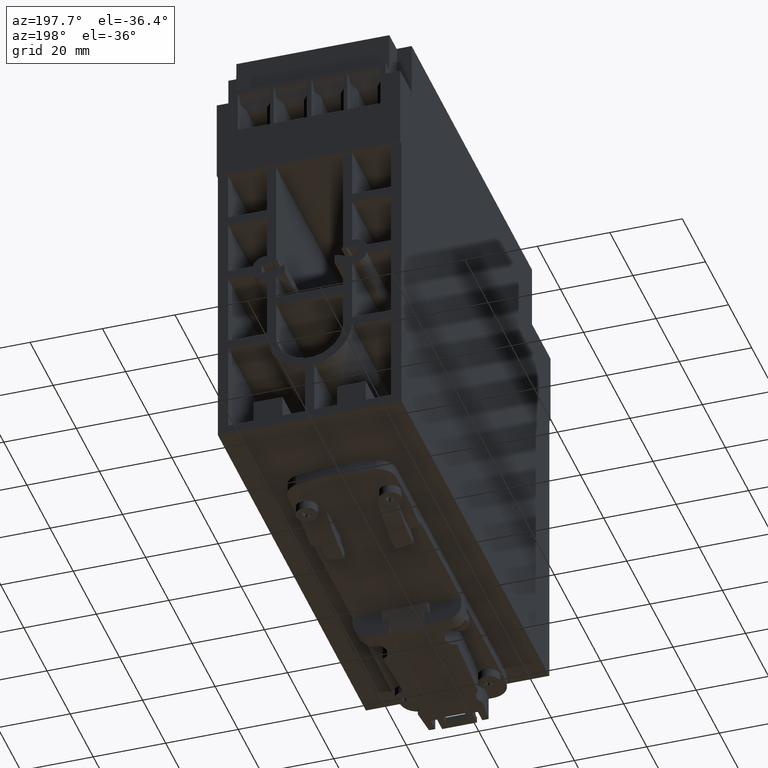
[diagram: clean part render]
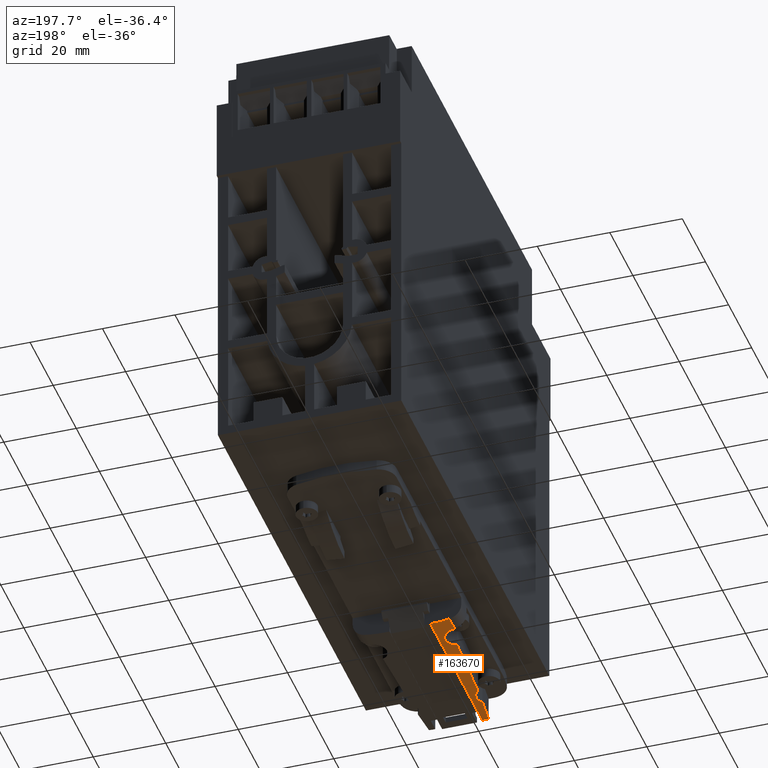
[diagram: same view with one face highlighted and labeled with its STEP entity id]
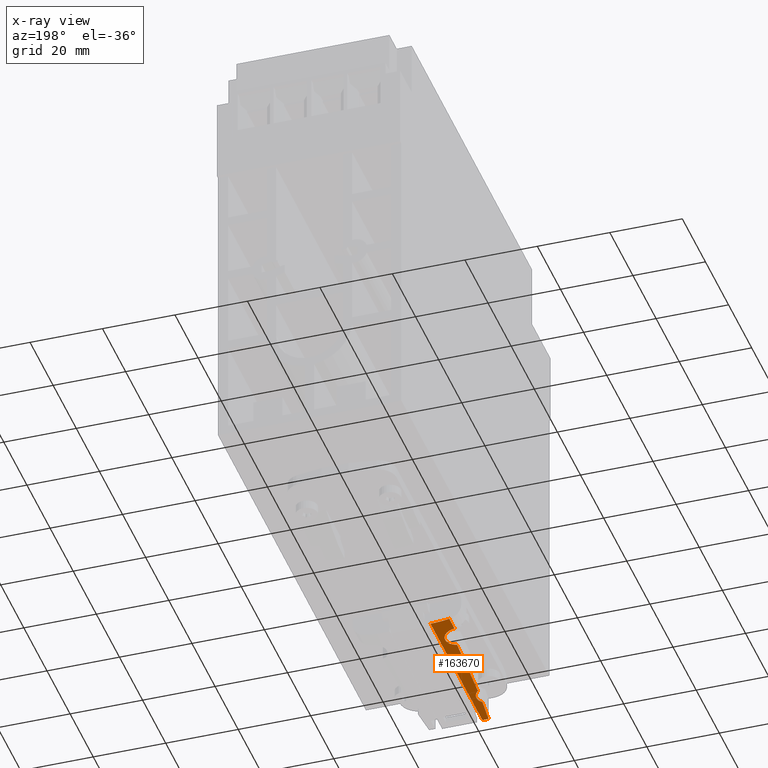
[diagram: x-ray of the same camera — body ghosted, the highlighted face saturated]
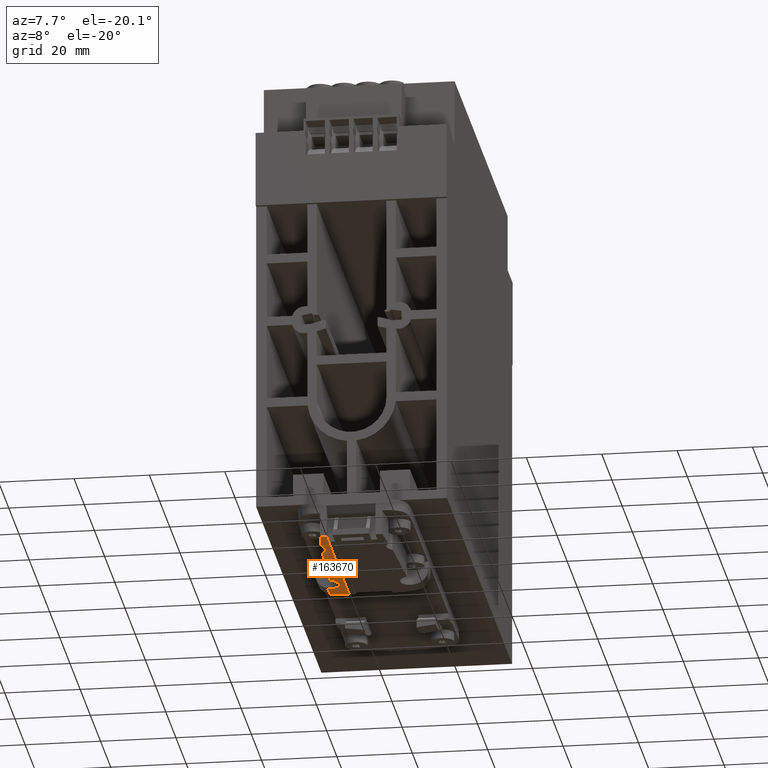
[diagram: same view with one face highlighted and labeled with its STEP entity id]
A machine part, auxiliary view. The second image highlights one B-rep face of the part: STEP entity #163670.
The next image is the same camera in x-ray: the body ghosted, the highlighted face saturated — about 0% of this face is hidden behind the body in this view.
A second angle (auxiliary view) of the same face is appended — the face is thin or edge-on in the first view.
In plain terms, the highlighted cylindrical surface (partial cylindrical patch) has radius 30 mm, axis along (0, -1, 0).
Its self-contained STEP definition (entity closure, byte-faithful):
#143780=CARTESIAN_POINT('',(-11.6923076923077,12.8527507062264,-21.85));
#143790=VERTEX_POINT('',#143780);
#143820=CARTESIAN_POINT('',(-6.5,42.4,-21.85));
#143830=DIRECTION('',(0.,0.,1.));
#143840=DIRECTION('',(-1.,0.,0.));
#143850=AXIS2_PLACEMENT_3D('',#143820,#143830,#143840);
#143860=CIRCLE('',#143850,30.);
#143870=CARTESIAN_POINT('',(-6.5,12.4,-21.85));
#143880=VERTEX_POINT('',#143870);
#143890=EDGE_CURVE('',#143790,#143880,#143860,.T.);
#161630=CARTESIAN_POINT('',(-6.5,12.4,-21.85));
#161640=DIRECTION('',(0.,0.,1.));
#161650=VECTOR('',#161640,1.);
#161660=LINE('',#161630,#161650);
#161670=CARTESIAN_POINT('',(-6.5,12.4,19.0999999999998));
#161680=VERTEX_POINT('',#161670);
#161690=CARTESIAN_POINT('',(-6.5,12.4,23.));
#161700=VERTEX_POINT('',#161690);
#161710=EDGE_CURVE('',#161680,#161700,#161660,.T.);
#162130=CARTESIAN_POINT('',(-6.5,42.4,-21.85));
#162140=DIRECTION('',(0.,0.,1.));
#162150=DIRECTION('',(-1.,0.,0.));
#162160=AXIS2_PLACEMENT_3D('',#162130,#162140,#162150);
#162170=CYLINDRICAL_SURFACE('',#162160,30.);
#162180=ORIENTED_EDGE('',*,*,#143890,.T.);
#162190=CARTESIAN_POINT('',(-11.6923076923077,12.8527507062264,-21.85));
#162200=DIRECTION('',(0.,0.,1.));
#162210=VECTOR('',#162200,1.);
#162220=LINE('',#162190,#162210);
#162230=CARTESIAN_POINT('',(-11.6923076923077,12.8527507062264,-17.35));
#162240=VERTEX_POINT('',#162230);
#162250=EDGE_CURVE('',#143790,#162240,#162220,.T.);
#162260=ORIENTED_EDGE('',*,*,#162250,.F.);
#162270=CARTESIAN_POINT('',(-6.5,42.4,-17.35));
#162280=DIRECTION('',(0.,0.,1.));
#162290=DIRECTION('',(-1.,0.,0.));
#162300=AXIS2_PLACEMENT_3D('',#162270,#162280,#162290);
#162310=CIRCLE('',#162300,30.);
#162320=CARTESIAN_POINT('',(-11.5,12.8196010845019,-17.35));
#162330=VERTEX_POINT('',#162320);
#162340=EDGE_CURVE('',#162240,#162330,#162310,.T.);
#162350=ORIENTED_EDGE('',*,*,#162340,.F.);
#162360=CARTESIAN_POINT('',(-11.5,19.,-13.85));
#162370=DIRECTION('',(0.,-1.,0.));
#162380=DIRECTION('',(-1.,0.,0.));
#162390=AXIS2_PLACEMENT_3D('',#162360,#162370,#162380);
#162400=CYLINDRICAL_SURFACE('',#162390,3.5);
#162410=CARTESIAN_POINT('',(-11.5000000000063,12.8196010844647,
-17.3500000000097));
#162420=CARTESIAN_POINT('',(-11.2931423601834,12.7846357615809,
-17.3500000000104));
#162430=CARTESIAN_POINT('',(-11.0858900517029,12.7518578759847,
-17.3316186964394));
#162440=CARTESIAN_POINT('',(-10.8814205337964,12.7216719792703,
-17.29490340126));
#162450=CARTESIAN_POINT('',(-10.6767532798838,12.6914568907295,
-17.2581525998796));
#162460=CARTESIAN_POINT('',(-10.4738672346477,12.6636994956723,
-17.202756760804));
#162470=CARTESIAN_POINT('',(-10.277482014877,12.6387730490277,
-17.1295502399034));
#162480=CARTESIAN_POINT('',(-10.0808374809587,12.6138136886013,
-17.0562470544647));
#162490=CARTESIAN_POINT('',(-9.89233494848774,12.5918636888878,
-16.9660003297459));
#162500=CARTESIAN_POINT('',(-9.71192066131365,12.5724361426309,
-16.8587825243067));
#162510=CARTESIAN_POINT('',(-9.53133489398652,12.5529901308818,
-16.7514628104989));
#162520=CARTESIAN_POINT('',(-9.3592880389757,12.5361413781381,
-16.6270505349766));
#162530=CARTESIAN_POINT('',(-9.19999999999902,12.5217470390246,
-16.4881811916558));
#162540=B_SPLINE_CURVE_WITH_KNOTS('',3,(#162410,#162420,#162430,#162440,
#162450,#162460,#162470,#162480,#162490,#162500,#162510,#162520,#162530)
,.UNSPECIFIED.,.F.,.F.,(4,3,3,3,4),(0.,0.629523768845779,
1.26200163375362,1.89339216829918,2.52828364580893),.UNSPECIFIED.);
#162550=SURFACE_CURVE('',#162540,(#162170,#162400),.CURVE_3D.);
#162560=CARTESIAN_POINT('',(-9.19999999999989,12.5217470390251,
-16.4881811916547));
#162570=VERTEX_POINT('',#162560);
#162580=EDGE_CURVE('',#162330,#162570,#162550,.T.);
#162590=ORIENTED_EDGE('',*,*,#162580,.F.);
#162600=CARTESIAN_POINT('',(-9.19999999999903,12.5217470390246,
-16.4881811916558));
#162610=CARTESIAN_POINT('',(-8.74799311860679,12.480900655491,
-16.094115829318));
#162620=CARTESIAN_POINT('',(-8.40145488432251,12.4596421136226,
-15.5856613008483));
#162630=CARTESIAN_POINT('',(-8.20038092506446,12.448227018928,
-15.0172677329223));
#162640=CARTESIAN_POINT('',(-8.00018741810911,12.4368619080625,
-14.4513630174939));
#162650=CARTESIAN_POINT('',(-7.94905183099555,12.4348364524817,
-13.8352684666434));
#162660=CARTESIAN_POINT('',(-8.05272809038401,12.4402096890293,
-13.2447592370201));
#162670=CARTESIAN_POINT('',(-8.15721745400263,12.4456250663852,
-12.6496188068173));
#162680=CARTESIAN_POINT('',(-8.4141003118436,12.4586694603101,
-12.0922500210504));
#162690=CARTESIAN_POINT('',(-8.7964519848054,12.4880239990487,
-11.6272026341706));
#162700=CARTESIAN_POINT('',(-9.17849047568578,12.5173544936515,
-11.1625361649613));
#162710=CARTESIAN_POINT('',(-9.67483815843947,12.5631381354221,
-10.8038758966104));
#162720=CARTESIAN_POINT('',(-10.2342996994722,12.6333239048329,
-10.5868722443929));
#162730=B_SPLINE_CURVE_WITH_KNOTS('',3,(#162600,#162610,#162620,#162630,
#162640,#162650,#162660,#162670,#162680,#162690,#162700,#162710,#162720)
,.UNSPECIFIED.,.F.,.F.,(4,3,3,3,4),(0.,1.79981834739298,3.59825865592626
,5.39912349663207,7.19964980058983),.UNSPECIFIED.);
#162740=SURFACE_CURVE('',#162730,(#162170,#162400),.CURVE_3D.);
#162750=CARTESIAN_POINT('',(-10.2342996994728,12.6333239048342,
-10.5868722444192));
#162760=VERTEX_POINT('',#162750);
#162770=EDGE_CURVE('',#162570,#162760,#162740,.T.);
#162780=ORIENTED_EDGE('',*,*,#162770,.F.);
#162790=CARTESIAN_POINT('',(391.2,19.,-17.85));
#162800=DIRECTION('',(0.,-1.,0.));
#162810=DIRECTION('',(0.,0.,-1.));
#162820=AXIS2_PLACEMENT_3D('',#162790,#162800,#162810);
#162830=CYLINDRICAL_SURFACE('',#162820,401.5);
#162840=CARTESIAN_POINT('',(-9.30312722696134,12.5312457951478,
10.4253440549157));
#162850=CARTESIAN_POINT('',(-9.42657509053282,12.5428311483605,
8.6767798176833));
#162860=CARTESIAN_POINT('',(-9.53857560080696,12.5541078523577,
6.92734669455989));
#162870=CARTESIAN_POINT('',(-9.63911352897247,12.5646859200004,
5.17726786458814));
#162880=CARTESIAN_POINT('',(-9.73965151282485,12.5752639935022,
3.4271880652669));
#162890=CARTESIAN_POINT('',(-9.82872670255094,12.5851433091239,
1.6764668940715));
#162900=CARTESIAN_POINT('',(-9.90633019640366,12.5940121017087,
-0.0746835084849433));
#162910=CARTESIAN_POINT('',(-9.98393445830821,12.6028809820692,
-1.82585124240359));
#162920=CARTESIAN_POINT('',(-10.0500735389715,12.6107400262186,
-3.5776017856922));
#162930=CARTESIAN_POINT('',(-10.1047374488267,12.6173562636722,
-5.32970842479265));
#162940=CARTESIAN_POINT('',(-10.1594014075818,12.6239725070443,
-7.08181663124836));
#162950=CARTESIAN_POINT('',(-10.2025900387418,12.6293458531308,
-8.8342739317367));
#162960=CARTESIAN_POINT('',(-10.2342996994727,12.633323904834,
-10.5868722444192));
#162970=B_SPLINE_CURVE_WITH_KNOTS('',3,(#162840,#162850,#162860,#162870,
#162880,#162890,#162900,#162910,#162920,#162930,#162940,#162950,#162960)
,.UNSPECIFIED.,.F.,.F.,(4,3,3,3,4),(0.,5.25896423971748,10.5178287123138
,15.7766875644562,21.0355099940784),.UNSPECIFIED.);
#162980=SURFACE_CURVE('',#162970,(#162170,#162830),.CURVE_3D.);
#162990=CARTESIAN_POINT('',(-9.30312722703557,12.5312457951576,
10.4253440538692));
#163000=VERTEX_POINT('',#162990);
#163010=EDGE_CURVE('',#163000,#162760,#162980,.T.);
#163020=ORIENTED_EDGE('',*,*,#163010,.T.);
#163030=CARTESIAN_POINT('',(-11.5,19.,13.15));
#163040=DIRECTION('',(0.,-1.,0.));
#163050=DIRECTION('',(-1.,0.,0.));
#163060=AXIS2_PLACEMENT_3D('',#163030,#163040,#163050);
#163070=CYLINDRICAL_SURFACE('',#163060,3.5);
#163080=CARTESIAN_POINT('',(-9.30312722718563,12.531245795175,
10.425344054731));
#163090=CARTESIAN_POINT('',(-8.93208503612669,12.4964241731864,
10.7245130153178));
#163100=CARTESIAN_POINT('',(-8.62645475471844,12.4746235649422,
11.0952903780079));
#163110=CARTESIAN_POINT('',(-8.40337746531005,12.460441649474,
11.5187646161113));
#163120=CARTESIAN_POINT('',(-8.18096465541459,12.446301977626,
11.9409774530375));
#163130=CARTESIAN_POINT('',(-8.04720280699236,12.4399011355809,
12.4032357681947));
#163140=CARTESIAN_POINT('',(-8.01036473783752,12.4380441499775,
12.8808425422318));
#163150=CARTESIAN_POINT('',(-7.97368544683498,12.4361951682883,
13.3563907523201));
#163160=CARTESIAN_POINT('',(-8.03424493769635,12.4388518478579,
13.834138480018));
#163170=CARTESIAN_POINT('',(-8.18990160572555,12.4476339404887,
14.2872108952265));
#163180=CARTESIAN_POINT('',(-8.34470426203453,12.4563678500886,
14.7377975245216));
#163190=CARTESIAN_POINT('',(-8.58985393997256,12.4711350241159,
15.1525002296756));
#163200=CARTESIAN_POINT('',(-8.91199221675918,12.4971189758195,
15.5063140100347));
#163210=B_SPLINE_CURVE_WITH_KNOTS('',3,(#163080,#163090,#163100,#163110,
#163120,#163130,#163140,#163150,#163160,#163170,#163180,#163190,#163200)
,.UNSPECIFIED.,.F.,.F.,(4,3,3,3,4),(0.,1.42772701203537,2.85545963365802
,4.28317958906297,5.71087821753932),.UNSPECIFIED.);
#163220=SURFACE_CURVE('',#163210,(#162170,#163070),.CURVE_3D.);
#163230=CARTESIAN_POINT('',(-8.91199221675916,12.4971189758177,
15.5063140100334));
#163240=VERTEX_POINT('',#163230);
#163250=EDGE_CURVE('',#163000,#163240,#163220,.T.);
#163260=ORIENTED_EDGE('',*,*,#163250,.F.);
#163270=CARTESIAN_POINT('',(391.2,19.,-17.85));
#163280=DIRECTION('',(0.,-1.,0.));
#163290=DIRECTION('',(0.,0.,-1.));
#163300=AXIS2_PLACEMENT_3D('',#163270,#163280,#163290);
#163310=CYLINDRICAL_SURFACE('',#163300,401.5);
#163320=CARTESIAN_POINT('',(-8.21648376099862,12.4491455297478,
22.9999999999985));
#163330=CARTESIAN_POINT('',(-8.2802935161988,12.4528024674389,
22.3760913573619));
#163340=CARTESIAN_POINT('',(-8.34264194217833,12.4565801424248,
21.752027887472));
#163350=CARTESIAN_POINT('',(-8.40352797402994,12.4604512182951,
21.127819727489));
#163360=CARTESIAN_POINT('',(-8.46441400587801,12.4643222941652,
20.5036115675424));
#163370=CARTESIAN_POINT('',(-8.5238376435828,12.4682867707061,
19.8792587175201));
#163380=CARTESIAN_POINT('',(-8.58179791525077,12.4723185421915,
19.2547713326678));
#163390=CARTESIAN_POINT('',(-8.63975818691577,12.4763503136767,
18.6302839478476));
#163400=CARTESIAN_POINT('',(-8.69625509251002,12.4804493798065,
18.005662028409));
#163410=CARTESIAN_POINT('',(-8.75128775339386,12.4845908693961,
17.3809157474214));
#163420=CARTESIAN_POINT('',(-8.80632041427963,12.4887323589859,
16.756169466412));
#163430=CARTESIAN_POINT('',(-8.85988883040849,12.4929162716639,
16.1312988242358));
#163440=CARTESIAN_POINT('',(-8.91199221675896,12.4971189758195,
15.5063140100369));
#163450=B_SPLINE_CURVE_WITH_KNOTS('',3,(#163320,#163330,#163340,#163350,
#163360,#163370,#163380,#163390,#163400,#163410,#163420,#163430,#163440)
,.UNSPECIFIED.,.F.,.F.,(4,3,3,3,4),(0.,1.88153629827552,3.76308826210906
,5.64463514090605,7.52615607694322),.UNSPECIFIED.);
#163460=SURFACE_CURVE('',#163450,(#162170,#163310),.CURVE_3D.);
#163470=CARTESIAN_POINT('',(-8.21648376099855,12.4491455297478,23.));
#163480=VERTEX_POINT('',#163470);
#163490=EDGE_CURVE('',#163480,#163240,#163460,.T.);
#163500=ORIENTED_EDGE('',*,*,#163490,.T.);
#163510=CARTESIAN_POINT('',(-6.5,42.4,23.));
#163520=DIRECTION('',(0.,0.,1.));
#163530=DIRECTION('',(-1.,0.,0.));
#163540=AXIS2_PLACEMENT_3D('',#163510,#163520,#163530);
#163550=CIRCLE('',#163540,30.);
#163560=EDGE_CURVE('',#163480,#161700,#163550,.T.);
#163570=ORIENTED_EDGE('',*,*,#163560,.F.);
#163580=ORIENTED_EDGE('',*,*,#161710,.T.);
#163590=CARTESIAN_POINT('',(-6.5,12.4,-21.85));
#163600=DIRECTION('',(0.,0.,1.));
#163610=VECTOR('',#163600,1.);
#163620=LINE('',#163590,#163610);
#163630=EDGE_CURVE('',#143880,#161680,#163620,.T.);
#163640=ORIENTED_EDGE('',*,*,#163630,.T.);
#163650=EDGE_LOOP('',(#163640,#163580,#163570,#163500,#163260,#163020,
#162780,#162590,#162350,#162260,#162180));
#163660=FACE_OUTER_BOUND('',#163650,.T.);
#163670=ADVANCED_FACE('',(#163660),#162170,.T.);